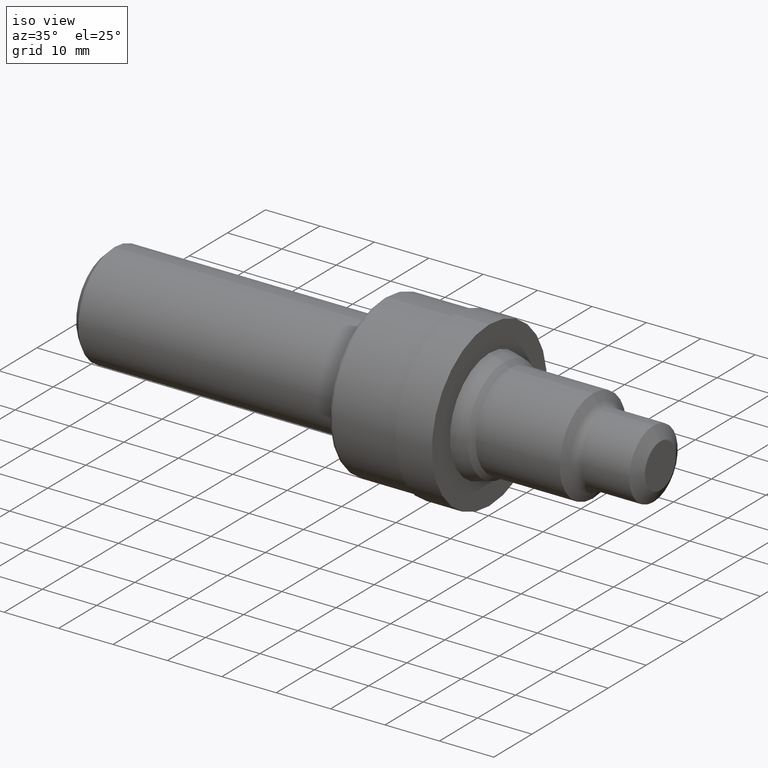
[diagram: clean part render]
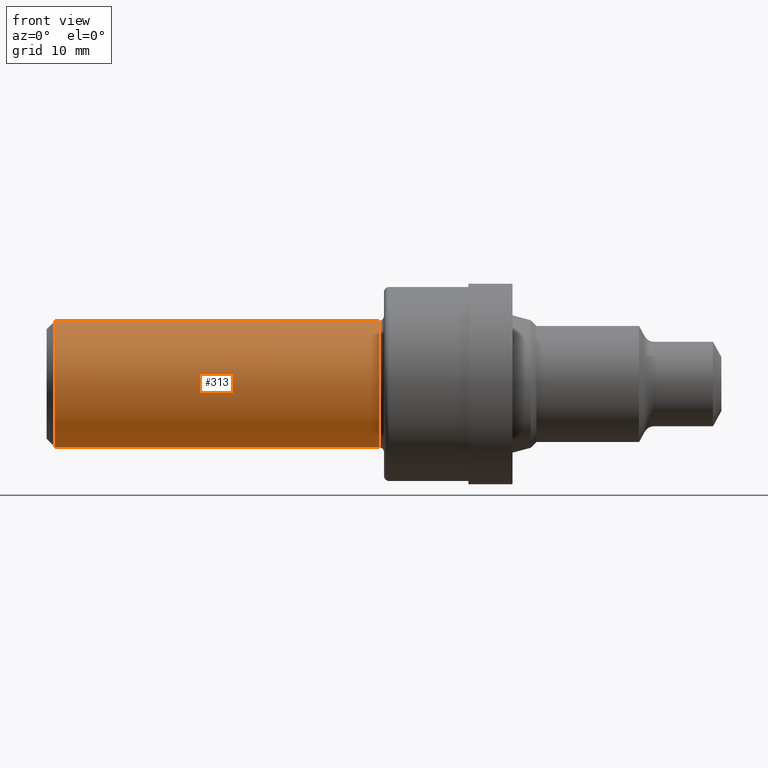
[diagram: tour spotlight — one face highlighted and labeled with its STEP entity id]
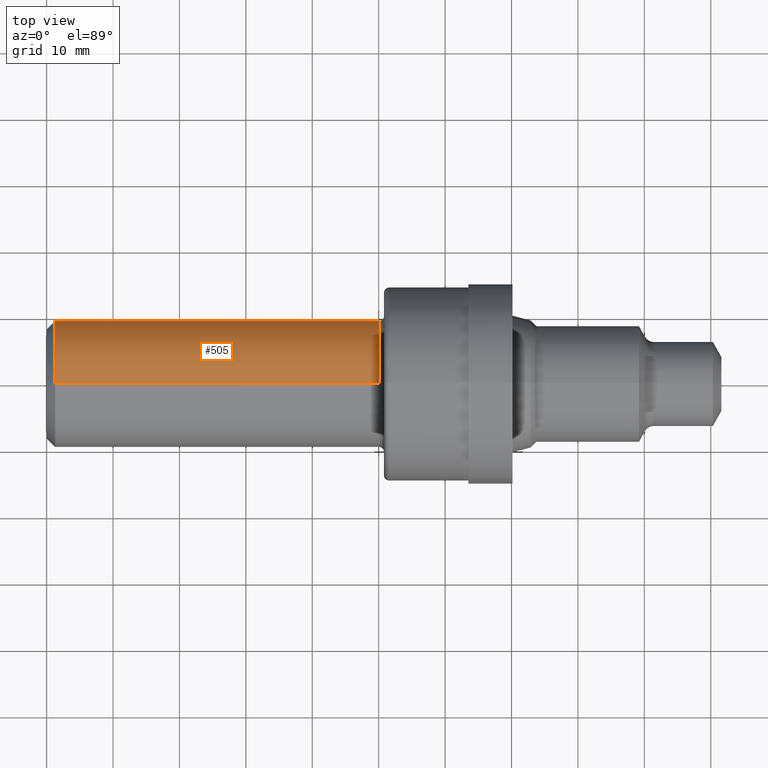
[diagram: tour spotlight — one face highlighted and labeled with its STEP entity id]
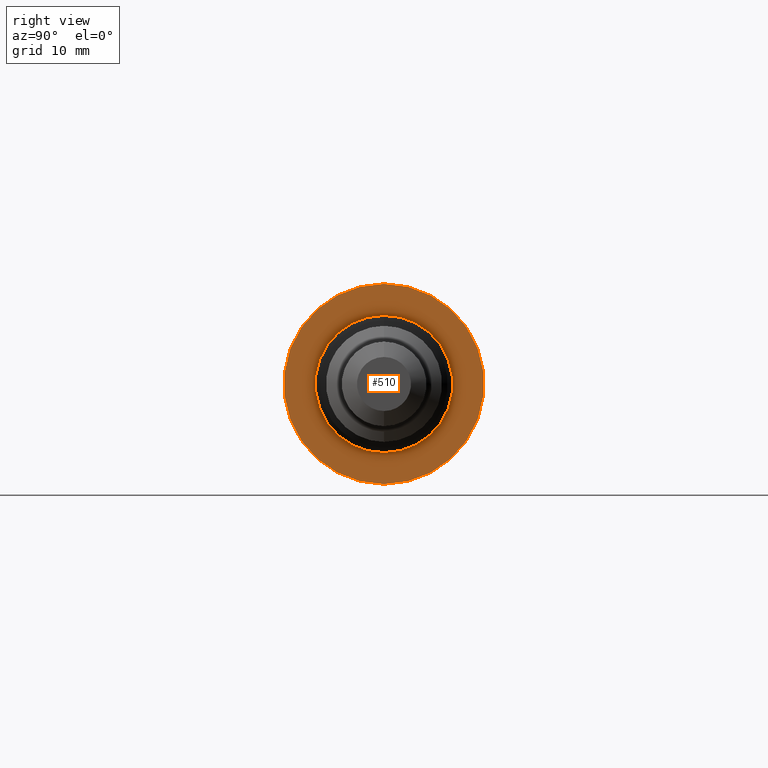
[diagram: tour spotlight — one face highlighted and labeled with its STEP entity id]
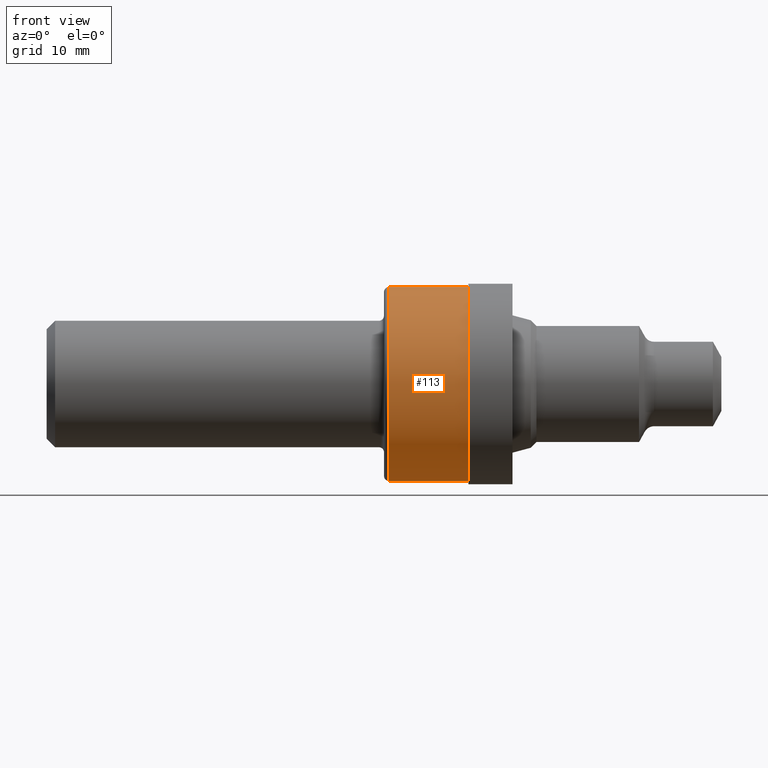
[diagram: tour spotlight — one face highlighted and labeled with its STEP entity id]
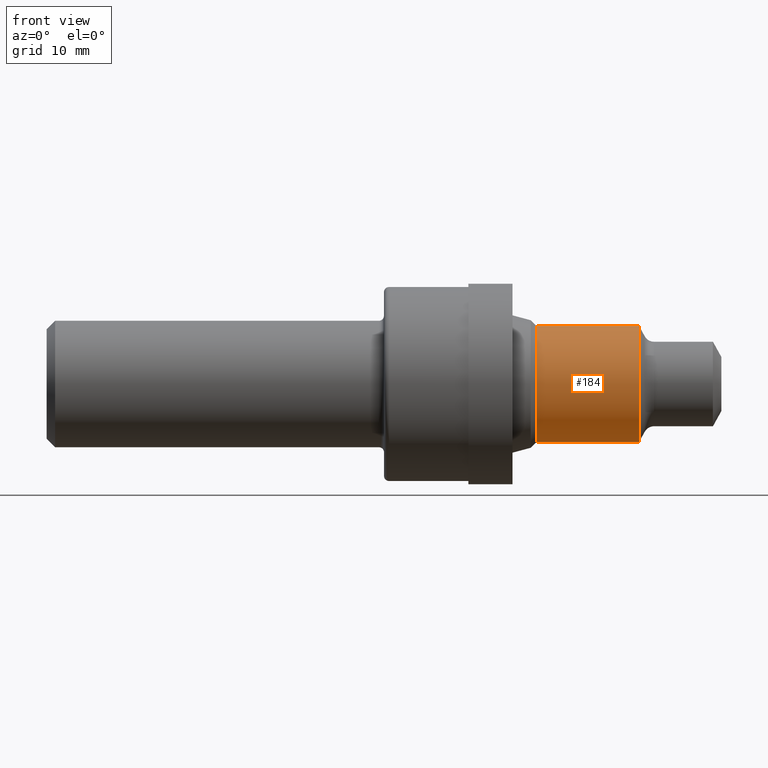
[diagram: tour spotlight — one face highlighted and labeled with its STEP entity id]
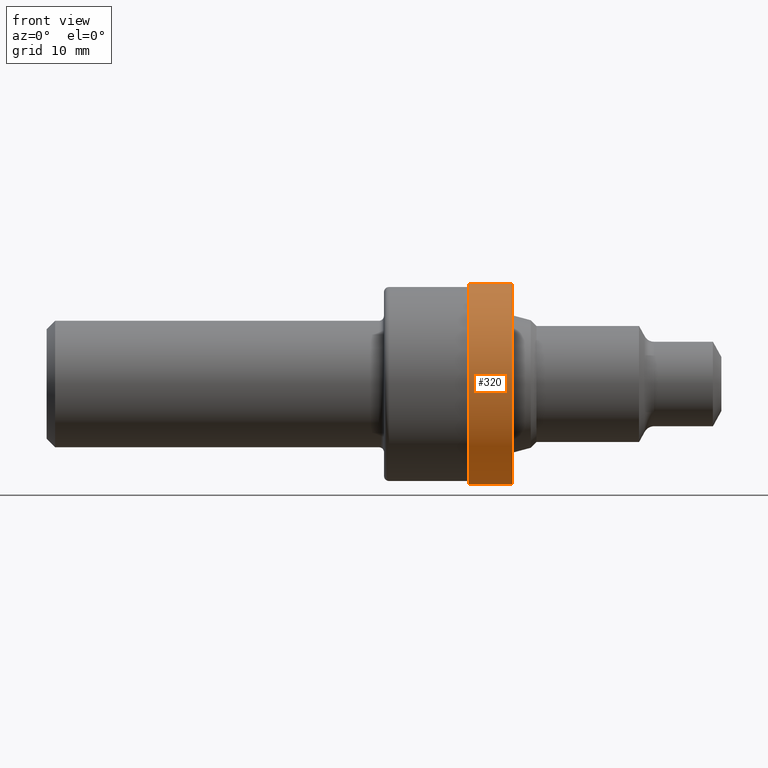
[diagram: tour spotlight — one face highlighted and labeled with its STEP entity id]
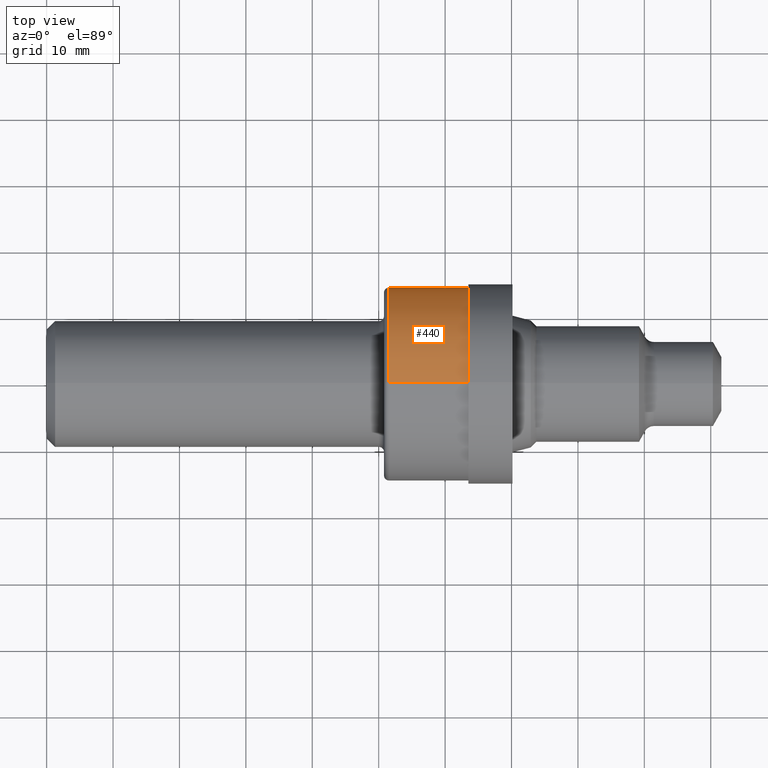
[diagram: tour spotlight — one face highlighted and labeled with its STEP entity id]
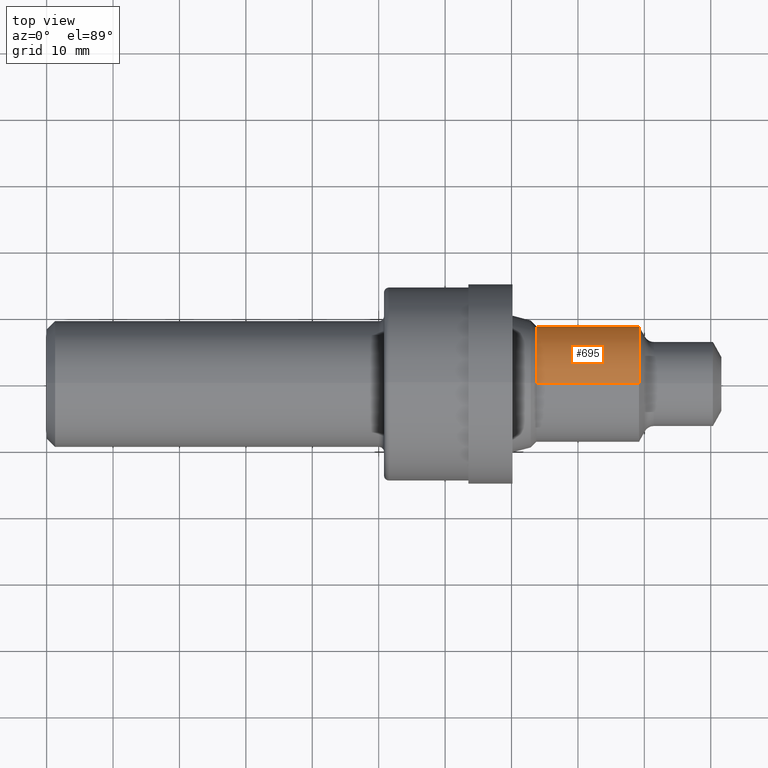
[diagram: tour spotlight — one face highlighted and labeled with its STEP entity id]
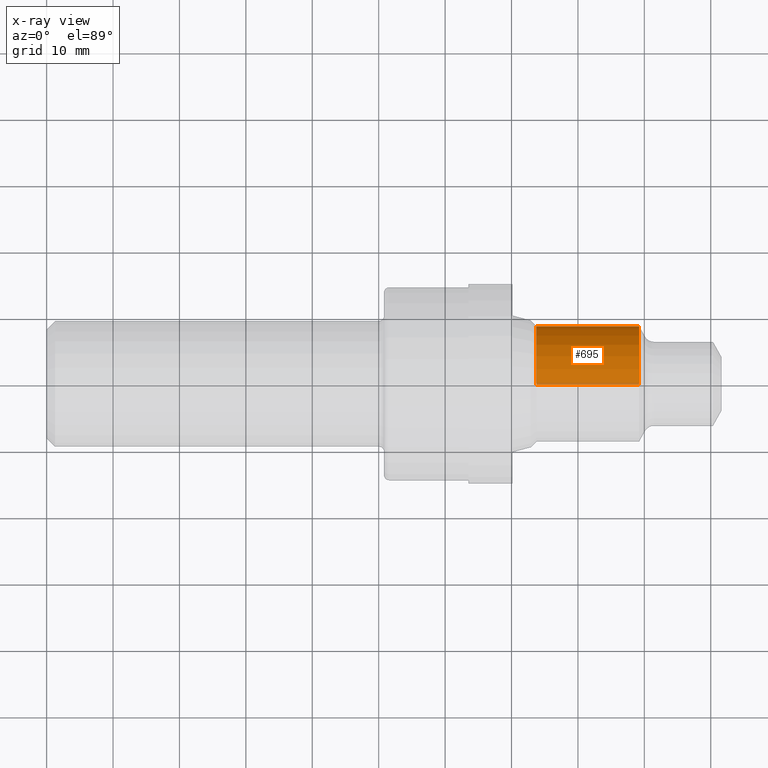
[diagram: x-ray of the same camera — body ghosted, this tour face saturated]
A machine part: a face-by-face anatomy tour. The part has 31 B-rep faces; the first image is the clean iso view, then the 8 largest visible faces are spotlighted one at a time (largest first), each with its STEP entity span.

Face 1 — front view, entity #313. In plain terms, the highlighted cylindrical surface (partial cylindrical patch) has radius 9.5212 mm, axis along (-1, -0, -0).
Definition (entity closure, byte-faithful):
#8 = DIRECTION ( 'NONE',  ( -1.000000000000000000, -0.0000000000000000000, -0.0000000000000000000 ) ) ;
#42 = VERTEX_POINT ( 'NONE', #271 ) ;
#58 = EDGE_CURVE ( 'NONE', #42, #753, #407, .T. ) ;
#80 = CARTESIAN_POINT ( 'NONE',  ( 0.05000000000000000278, 0.0000000000000000000, -0.3748500000000000165 ) ) ;
#86 = FACE_OUTER_BOUND ( 'NONE', #800, .T. ) ;
#92 = ORIENTED_EDGE ( 'NONE', *, *, #580, .T. ) ;
#114 = ORIENTED_EDGE ( 'NONE', *, *, #679, .F. ) ;
#132 = ORIENTED_EDGE ( 'NONE', *, *, #687, .T. ) ;
#139 = CIRCLE ( 'NONE', #490, 0.3748500000000000165 ) ;
#164 = LINE ( 'NONE', #498, #342 ) ;
#172 = CARTESIAN_POINT ( 'NONE',  ( 1.969999999999999973, 0.0000000000000000000, 0.3748500000000005161 ) ) ;
#186 = VECTOR ( 'NONE', #337, 39.37007874015748143 ) ;
#212 = DIRECTION ( 'NONE',  ( 0.0000000000000000000, 0.0000000000000000000, 1.000000000000000000 ) ) ;
#251 = AXIS2_PLACEMENT_3D ( 'NONE', #410, #8, #343 ) ;
#271 = CARTESIAN_POINT ( 'NONE',  ( 1.969999999999999973, 4.590588526603859294E-17, -0.3748500000000005161 ) ) ;
#273 = CARTESIAN_POINT ( 'NONE',  ( 0.0000000000000000000, 0.0000000000000000000, 0.0000000000000000000 ) ) ;
#278 = CIRCLE ( 'NONE', #251, 0.3748500000000005161 ) ;
#308 = DIRECTION ( 'NONE',  ( -1.000000000000000000, -0.0000000000000000000, -0.0000000000000000000 ) ) ;
#313 = ADVANCED_FACE ( 'NONE', ( #86 ), #548, .T. ) ;
#337 = DIRECTION ( 'NONE',  ( -1.000000000000000000, -0.0000000000000000000, -0.0000000000000000000 ) ) ;
#342 = VECTOR ( 'NONE', #308, 39.37007874015748143 ) ;
#343 = DIRECTION ( 'NONE',  ( 0.0000000000000000000, 0.0000000000000000000, 1.000000000000000000 ) ) ;
#407 = LINE ( 'NONE', #774, #186 ) ;
#410 = CARTESIAN_POINT ( 'NONE',  ( 1.969999999999999973, 0.0000000000000000000, 0.0000000000000000000 ) ) ;
#423 = CARTESIAN_POINT ( 'NONE',  ( 0.05000000000000000278, 4.590588526603853748E-17, 0.3748500000000000165 ) ) ;
#438 = DIRECTION ( 'NONE',  ( -1.000000000000000000, -0.0000000000000000000, -0.0000000000000000000 ) ) ;
#490 = AXIS2_PLACEMENT_3D ( 'NONE', #809, #438, #621 ) ;
#498 = CARTESIAN_POINT ( 'NONE',  ( 0.0000000000000000000, 0.0000000000000000000, 0.3748500000000002386 ) ) ;
#504 = VERTEX_POINT ( 'NONE', #172 ) ;
#540 = ORIENTED_EDGE ( 'NONE', *, *, #58, .F. ) ;
#548 = CYLINDRICAL_SURFACE ( 'NONE', #765, 0.3748500000000002386 ) ;
#580 = EDGE_CURVE ( 'NONE', #504, #833, #164, .T. ) ;
#621 = DIRECTION ( 'NONE',  ( 0.0000000000000000000, 0.0000000000000000000, 1.000000000000000000 ) ) ;
#679 = EDGE_CURVE ( 'NONE', #753, #833, #139, .T. ) ;
#687 = EDGE_CURVE ( 'NONE', #42, #504, #278, .T. ) ;
#723 = DIRECTION ( 'NONE',  ( -1.000000000000000000, -0.0000000000000000000, -0.0000000000000000000 ) ) ;
#753 = VERTEX_POINT ( 'NONE', #80 ) ;
#765 = AXIS2_PLACEMENT_3D ( 'NONE', #273, #723, #212 ) ;
#774 = CARTESIAN_POINT ( 'NONE',  ( 0.0000000000000000000, 4.590588526603856213E-17, -0.3748500000000002386 ) ) ;
#800 = EDGE_LOOP ( 'NONE', ( #540, #132, #92, #114 ) ) ;
#809 = CARTESIAN_POINT ( 'NONE',  ( 0.05000000000000000278, 0.0000000000000000000, 0.0000000000000000000 ) ) ;
#833 = VERTEX_POINT ( 'NONE', #423 ) ;

Face 2 — top view, entity #505. In plain terms, the highlighted cylindrical surface (partial cylindrical patch) has radius 9.5212 mm, axis along (-1, -0, -0).
Definition (entity closure, byte-faithful):
#15 = DIRECTION ( 'NONE',  ( 0.0000000000000000000, 0.0000000000000000000, 1.000000000000000000 ) ) ;
#21 = ORIENTED_EDGE ( 'NONE', *, *, #844, .T. ) ;
#42 = VERTEX_POINT ( 'NONE', #271 ) ;
#52 = CYLINDRICAL_SURFACE ( 'NONE', #81, 0.3748500000000002386 ) ;
#58 = EDGE_CURVE ( 'NONE', #42, #753, #407, .T. ) ;
#80 = CARTESIAN_POINT ( 'NONE',  ( 0.05000000000000000278, 0.0000000000000000000, -0.3748500000000000165 ) ) ;
#81 = AXIS2_PLACEMENT_3D ( 'NONE', #716, #771, #752 ) ;
#164 = LINE ( 'NONE', #498, #342 ) ;
#172 = CARTESIAN_POINT ( 'NONE',  ( 1.969999999999999973, 0.0000000000000000000, 0.3748500000000005161 ) ) ;
#177 = CIRCLE ( 'NONE', #592, 0.3748500000000000165 ) ;
#186 = VECTOR ( 'NONE', #337, 39.37007874015748143 ) ;
#205 = DIRECTION ( 'NONE',  ( 0.0000000000000000000, 0.0000000000000000000, 1.000000000000000000 ) ) ;
#207 = ORIENTED_EDGE ( 'NONE', *, *, #580, .F. ) ;
#271 = CARTESIAN_POINT ( 'NONE',  ( 1.969999999999999973, 4.590588526603859294E-17, -0.3748500000000005161 ) ) ;
#308 = DIRECTION ( 'NONE',  ( -1.000000000000000000, -0.0000000000000000000, -0.0000000000000000000 ) ) ;
#337 = DIRECTION ( 'NONE',  ( -1.000000000000000000, -0.0000000000000000000, -0.0000000000000000000 ) ) ;
#342 = VECTOR ( 'NONE', #308, 39.37007874015748143 ) ;
#360 = CARTESIAN_POINT ( 'NONE',  ( 1.969999999999999973, 0.0000000000000000000, 0.0000000000000000000 ) ) ;
#407 = LINE ( 'NONE', #774, #186 ) ;
#423 = CARTESIAN_POINT ( 'NONE',  ( 0.05000000000000000278, 4.590588526603853748E-17, 0.3748500000000000165 ) ) ;
#471 = EDGE_CURVE ( 'NONE', #833, #753, #177, .T. ) ;
#498 = CARTESIAN_POINT ( 'NONE',  ( 0.0000000000000000000, 0.0000000000000000000, 0.3748500000000002386 ) ) ;
#504 = VERTEX_POINT ( 'NONE', #172 ) ;
#505 = ADVANCED_FACE ( 'NONE', ( #578 ), #52, .T. ) ;
#547 = DIRECTION ( 'NONE',  ( -1.000000000000000000, -0.0000000000000000000, -0.0000000000000000000 ) ) ;
#571 = ORIENTED_EDGE ( 'NONE', *, *, #471, .F. ) ;
#578 = FACE_OUTER_BOUND ( 'NONE', #653, .T. ) ;
#580 = EDGE_CURVE ( 'NONE', #504, #833, #164, .T. ) ;
#592 = AXIS2_PLACEMENT_3D ( 'NONE', #595, #657, #205 ) ;
#595 = CARTESIAN_POINT ( 'NONE',  ( 0.05000000000000000278, 0.0000000000000000000, 0.0000000000000000000 ) ) ;
#598 = CIRCLE ( 'NONE', #759, 0.3748500000000005161 ) ;
#653 = EDGE_LOOP ( 'NONE', ( #21, #823, #571, #207 ) ) ;
#657 = DIRECTION ( 'NONE',  ( -1.000000000000000000, -0.0000000000000000000, -0.0000000000000000000 ) ) ;
#716 = CARTESIAN_POINT ( 'NONE',  ( 0.0000000000000000000, 0.0000000000000000000, 0.0000000000000000000 ) ) ;
#752 = DIRECTION ( 'NONE',  ( 0.0000000000000000000, 0.0000000000000000000, 1.000000000000000000 ) ) ;
#753 = VERTEX_POINT ( 'NONE', #80 ) ;
#759 = AXIS2_PLACEMENT_3D ( 'NONE', #360, #547, #15 ) ;
#771 = DIRECTION ( 'NONE',  ( -1.000000000000000000, -0.0000000000000000000, -0.0000000000000000000 ) ) ;
#774 = CARTESIAN_POINT ( 'NONE',  ( 0.0000000000000000000, 4.590588526603856213E-17, -0.3748500000000002386 ) ) ;
#823 = ORIENTED_EDGE ( 'NONE', *, *, #58, .T. ) ;
#833 = VERTEX_POINT ( 'NONE', #423 ) ;
#844 = EDGE_CURVE ( 'NONE', #504, #42, #598, .T. ) ;

Face 3 — right view, entity #510. In plain terms, the highlighted planar face has unit normal (-1, 0, -0).
Definition (entity closure, byte-faithful):
#1 = CARTESIAN_POINT ( 'NONE',  ( 2.762000000000000011, 0.5939999999999999725, 0.0000000000000000000 ) ) ;
#28 = DIRECTION ( 'NONE',  ( 0.0000000000000000000, 0.0000000000000000000, 1.000000000000000000 ) ) ;
#41 = CIRCLE ( 'NONE', #538, 0.4069999999999999729 ) ;
#56 = PLANE ( 'NONE',  #298 ) ;
#61 = CARTESIAN_POINT ( 'NONE',  ( 2.762000000000000011, 0.0000000000000000000, 0.0000000000000000000 ) ) ;
#62 = CIRCLE ( 'NONE', #408, 0.5939999999999999725 ) ;
#111 = CIRCLE ( 'NONE', #327, 0.4069999999999999729 ) ;
#137 = CARTESIAN_POINT ( 'NONE',  ( 2.762000000000000011, 0.0000000000000000000, 0.5939999999999999725 ) ) ;
#151 = DIRECTION ( 'NONE',  ( -1.000000000000000000, -0.0000000000000000000, -0.0000000000000000000 ) ) ;
#195 = CARTESIAN_POINT ( 'NONE',  ( 2.762000000000000011, 0.0000000000000000000, 0.4069999999999999729 ) ) ;
#252 = EDGE_CURVE ( 'NONE', #553, #319, #62, .T. ) ;
#270 = VERTEX_POINT ( 'NONE', #785 ) ;
#275 = CARTESIAN_POINT ( 'NONE',  ( 2.762000000000000011, 0.0000000000000000000, 0.0000000000000000000 ) ) ;
#286 = ORIENTED_EDGE ( 'NONE', *, *, #579, .F. ) ;
#298 = AXIS2_PLACEMENT_3D ( 'NONE', #1, #766, #640 ) ;
#316 = AXIS2_PLACEMENT_3D ( 'NONE', #795, #424, #28 ) ;
#319 = VERTEX_POINT ( 'NONE', #137 ) ;
#327 = AXIS2_PLACEMENT_3D ( 'NONE', #481, #151, #610 ) ;
#329 = EDGE_LOOP ( 'NONE', ( #286, #565 ) ) ;
#344 = EDGE_CURVE ( 'NONE', #482, #270, #41, .T. ) ;
#405 = FACE_OUTER_BOUND ( 'NONE', #329, .T. ) ;
#408 = AXIS2_PLACEMENT_3D ( 'NONE', #275, #607, #668 ) ;
#424 = DIRECTION ( 'NONE',  ( -1.000000000000000000, -0.0000000000000000000, -0.0000000000000000000 ) ) ;
#425 = FACE_BOUND ( 'NONE', #502, .T. ) ;
#481 = CARTESIAN_POINT ( 'NONE',  ( 2.762000000000000011, 0.0000000000000000000, 0.0000000000000000000 ) ) ;
#482 = VERTEX_POINT ( 'NONE', #195 ) ;
#496 = CIRCLE ( 'NONE', #316, 0.5939999999999999725 ) ;
#502 = EDGE_LOOP ( 'NONE', ( #514, #728 ) ) ;
#510 = ADVANCED_FACE ( 'NONE', ( #405, #425 ), #56, .F. ) ;
#514 = ORIENTED_EDGE ( 'NONE', *, *, #344, .T. ) ;
#524 = DIRECTION ( 'NONE',  ( -1.000000000000000000, -0.0000000000000000000, -0.0000000000000000000 ) ) ;
#538 = AXIS2_PLACEMENT_3D ( 'NONE', #61, #524, #567 ) ;
#553 = VERTEX_POINT ( 'NONE', #624 ) ;
#565 = ORIENTED_EDGE ( 'NONE', *, *, #252, .F. ) ;
#567 = DIRECTION ( 'NONE',  ( 0.0000000000000000000, 0.0000000000000000000, 1.000000000000000000 ) ) ;
#579 = EDGE_CURVE ( 'NONE', #319, #553, #496, .T. ) ;
#607 = DIRECTION ( 'NONE',  ( -1.000000000000000000, -0.0000000000000000000, -0.0000000000000000000 ) ) ;
#610 = DIRECTION ( 'NONE',  ( 0.0000000000000000000, 0.0000000000000000000, 1.000000000000000000 ) ) ;
#624 = CARTESIAN_POINT ( 'NONE',  ( 2.762000000000000011, 7.274401986935277967E-17, -0.5939999999999999725 ) ) ;
#640 = DIRECTION ( 'NONE',  ( -0.0000000000000000000, 0.0000000000000000000, 1.000000000000000000 ) ) ;
#668 = DIRECTION ( 'NONE',  ( 0.0000000000000000000, 0.0000000000000000000, 1.000000000000000000 ) ) ;
#728 = ORIENTED_EDGE ( 'NONE', *, *, #793, .T. ) ;
#766 = DIRECTION ( 'NONE',  ( -1.000000000000000000, 0.0000000000000000000, -0.0000000000000000000 ) ) ;
#785 = CARTESIAN_POINT ( 'NONE',  ( 2.762000000000000011, 4.984312472529727610E-17, -0.4069999999999999729 ) ) ;
#793 = EDGE_CURVE ( 'NONE', #270, #482, #111, .T. ) ;
#795 = CARTESIAN_POINT ( 'NONE',  ( 2.762000000000000011, 0.0000000000000000000, 0.0000000000000000000 ) ) ;

Face 4 — front view, entity #113. In plain terms, the highlighted cylindrical surface (partial cylindrical patch) has radius 14.605 mm, axis along (-1, -0, -0).
Definition (entity closure, byte-faithful):
#10 = ORIENTED_EDGE ( 'NONE', *, *, #431, .F. ) ;
#38 = ORIENTED_EDGE ( 'NONE', *, *, #751, .T. ) ;
#39 = DIRECTION ( 'NONE',  ( -1.000000000000000000, -0.0000000000000000000, -0.0000000000000000000 ) ) ;
#68 = CARTESIAN_POINT ( 'NONE',  ( 2.029999999999999805, 0.0000000000000000000, 0.0000000000000000000 ) ) ;
#107 = VERTEX_POINT ( 'NONE', #767 ) ;
#113 = ADVANCED_FACE ( 'NONE', ( #665 ), #192, .T. ) ;
#123 = DIRECTION ( 'NONE',  ( -1.000000000000000000, -0.0000000000000000000, -0.0000000000000000000 ) ) ;
#127 = CARTESIAN_POINT ( 'NONE',  ( 0.0000000000000000000, 0.0000000000000000000, 0.0000000000000000000 ) ) ;
#129 = VECTOR ( 'NONE', #213, 39.37007874015748143 ) ;
#130 = AXIS2_PLACEMENT_3D ( 'NONE', #68, #39, #244 ) ;
#170 = EDGE_LOOP ( 'NONE', ( #10, #466, #38, #768 ) ) ;
#192 = CYLINDRICAL_SURFACE ( 'NONE', #569, 0.5749999999999998446 ) ;
#198 = DIRECTION ( 'NONE',  ( 0.0000000000000000000, 0.0000000000000000000, 1.000000000000000000 ) ) ;
#199 = DIRECTION ( 'NONE',  ( 0.0000000000000000000, 0.0000000000000000000, 1.000000000000000000 ) ) ;
#213 = DIRECTION ( 'NONE',  ( -1.000000000000000000, -0.0000000000000000000, -0.0000000000000000000 ) ) ;
#241 = AXIS2_PLACEMENT_3D ( 'NONE', #392, #589, #198 ) ;
#244 = DIRECTION ( 'NONE',  ( 0.0000000000000000000, 0.0000000000000000000, 1.000000000000000000 ) ) ;
#290 = CARTESIAN_POINT ( 'NONE',  ( 2.500000000000000000, 0.0000000000000000000, 0.5749999999999999556 ) ) ;
#381 = EDGE_CURVE ( 'NONE', #107, #834, #527, .T. ) ;
#392 = CARTESIAN_POINT ( 'NONE',  ( 2.500000000000000000, 0.0000000000000000000, 0.0000000000000000000 ) ) ;
#419 = EDGE_CURVE ( 'NONE', #549, #475, #528, .T. ) ;
#431 = EDGE_CURVE ( 'NONE', #107, #549, #675, .T. ) ;
#466 = ORIENTED_EDGE ( 'NONE', *, *, #381, .T. ) ;
#475 = VERTEX_POINT ( 'NONE', #532 ) ;
#507 = VECTOR ( 'NONE', #700, 39.37007874015748143 ) ;
#527 = CIRCLE ( 'NONE', #241, 0.5749999999999999556 ) ;
#528 = CIRCLE ( 'NONE', #130, 0.5749999999999998446 ) ;
#532 = CARTESIAN_POINT ( 'NONE',  ( 2.029999999999999805, 0.0000000000000000000, 0.5749999999999998446 ) ) ;
#549 = VERTEX_POINT ( 'NONE', #688 ) ;
#569 = AXIS2_PLACEMENT_3D ( 'NONE', #127, #123, #199 ) ;
#589 = DIRECTION ( 'NONE',  ( -1.000000000000000000, -0.0000000000000000000, -0.0000000000000000000 ) ) ;
#601 = CARTESIAN_POINT ( 'NONE',  ( 0.0000000000000000000, 0.0000000000000000000, 0.5749999999999998446 ) ) ;
#665 = FACE_OUTER_BOUND ( 'NONE', #170, .T. ) ;
#675 = LINE ( 'NONE', #808, #507 ) ;
#688 = CARTESIAN_POINT ( 'NONE',  ( 2.029999999999999805, 7.041719095097280140E-17, -0.5749999999999998446 ) ) ;
#700 = DIRECTION ( 'NONE',  ( -1.000000000000000000, -0.0000000000000000000, -0.0000000000000000000 ) ) ;
#751 = EDGE_CURVE ( 'NONE', #834, #475, #817, .T. ) ;
#767 = CARTESIAN_POINT ( 'NONE',  ( 2.500000000000000000, 7.041719095097281373E-17, -0.5750000000000000666 ) ) ;
#768 = ORIENTED_EDGE ( 'NONE', *, *, #419, .F. ) ;
#808 = CARTESIAN_POINT ( 'NONE',  ( 0.0000000000000000000, 7.041719095097280140E-17, -0.5749999999999998446 ) ) ;
#817 = LINE ( 'NONE', #601, #129 ) ;
#834 = VERTEX_POINT ( 'NONE', #290 ) ;

Face 5 — front view, entity #184. In plain terms, the highlighted cylindrical surface (partial cylindrical patch) has radius 8.7376 mm, axis along (-1, -0, -0).
Definition (entity closure, byte-faithful):
#20 = CIRCLE ( 'NONE', #136, 0.3440000000000000280 ) ;
#57 = CARTESIAN_POINT ( 'NONE',  ( 0.0000000000000000000, 0.0000000000000000000, 0.0000000000000000000 ) ) ;
#69 = ORIENTED_EDGE ( 'NONE', *, *, #459, .T. ) ;
#105 = DIRECTION ( 'NONE',  ( -1.000000000000000000, -0.0000000000000000000, -0.0000000000000000000 ) ) ;
#119 = DIRECTION ( 'NONE',  ( -1.000000000000000000, -0.0000000000000000000, -0.0000000000000000000 ) ) ;
#136 = AXIS2_PLACEMENT_3D ( 'NONE', #437, #703, #519 ) ;
#138 = ORIENTED_EDGE ( 'NONE', *, *, #403, .F. ) ;
#148 = DIRECTION ( 'NONE',  ( -1.000000000000000000, -0.0000000000000000000, -0.0000000000000000000 ) ) ;
#184 = ADVANCED_FACE ( 'NONE', ( #807 ), #804, .T. ) ;
#239 = CARTESIAN_POINT ( 'NONE',  ( 3.512000000000000011, 0.0000000000000000000, 0.0000000000000000000 ) ) ;
#255 = AXIS2_PLACEMENT_3D ( 'NONE', #57, #119, #829 ) ;
#258 = LINE ( 'NONE', #727, #746 ) ;
#263 = CARTESIAN_POINT ( 'NONE',  ( 3.512000000000000011, 0.0000000000000000000, 0.3440000000000000280 ) ) ;
#269 = EDGE_CURVE ( 'NONE', #422, #770, #258, .T. ) ;
#272 = AXIS2_PLACEMENT_3D ( 'NONE', #239, #105, #501 ) ;
#287 = EDGE_LOOP ( 'NONE', ( #347, #69, #398, #138 ) ) ;
#299 = EDGE_CURVE ( 'NONE', #707, #330, #416, .T. ) ;
#307 = CARTESIAN_POINT ( 'NONE',  ( 2.904061487217438398, 4.421351445542069330E-17, -0.3440000000000000280 ) ) ;
#330 = VERTEX_POINT ( 'NONE', #307 ) ;
#345 = DIRECTION ( 'NONE',  ( -1.000000000000000000, -0.0000000000000000000, -0.0000000000000000000 ) ) ;
#347 = ORIENTED_EDGE ( 'NONE', *, *, #299, .F. ) ;
#348 = CARTESIAN_POINT ( 'NONE',  ( 0.0000000000000000000, 4.212784989066894949E-17, -0.3440000000000000280 ) ) ;
#349 = CARTESIAN_POINT ( 'NONE',  ( 2.904061487217438398, 0.0000000000000000000, 0.3440000000000000280 ) ) ;
#397 = VECTOR ( 'NONE', #148, 39.37007874015748143 ) ;
#398 = ORIENTED_EDGE ( 'NONE', *, *, #269, .T. ) ;
#403 = EDGE_CURVE ( 'NONE', #330, #770, #20, .T. ) ;
#416 = LINE ( 'NONE', #348, #397 ) ;
#422 = VERTEX_POINT ( 'NONE', #263 ) ;
#437 = CARTESIAN_POINT ( 'NONE',  ( 2.904061487217438398, 0.0000000000000000000, 0.0000000000000000000 ) ) ;
#459 = EDGE_CURVE ( 'NONE', #707, #422, #597, .T. ) ;
#501 = DIRECTION ( 'NONE',  ( 0.0000000000000000000, 0.0000000000000000000, 1.000000000000000000 ) ) ;
#519 = DIRECTION ( 'NONE',  ( 0.0000000000000000000, 0.0000000000000000000, 1.000000000000000000 ) ) ;
#597 = CIRCLE ( 'NONE', #272, 0.3440000000000000280 ) ;
#703 = DIRECTION ( 'NONE',  ( -1.000000000000000000, -0.0000000000000000000, -0.0000000000000000000 ) ) ;
#707 = VERTEX_POINT ( 'NONE', #731 ) ;
#727 = CARTESIAN_POINT ( 'NONE',  ( 0.0000000000000000000, 0.0000000000000000000, 0.3440000000000000280 ) ) ;
#731 = CARTESIAN_POINT ( 'NONE',  ( 3.512000000000000011, 4.212784989066894949E-17, -0.3440000000000000280 ) ) ;
#746 = VECTOR ( 'NONE', #345, 39.37007874015748143 ) ;
#770 = VERTEX_POINT ( 'NONE', #349 ) ;
#804 = CYLINDRICAL_SURFACE ( 'NONE', #255, 0.3440000000000000280 ) ;
#807 = FACE_OUTER_BOUND ( 'NONE', #287, .T. ) ;
#829 = DIRECTION ( 'NONE',  ( 0.0000000000000000000, 0.0000000000000000000, 1.000000000000000000 ) ) ;

Face 6 — front view, entity #320. In plain terms, the highlighted cylindrical surface (partial cylindrical patch) has radius 15.0876 mm, axis along (-1, -0, -0).
Definition (entity closure, byte-faithful):
#19 = CYLINDRICAL_SURFACE ( 'NONE', #99, 0.5939999999999999725 ) ;
#48 = EDGE_CURVE ( 'NONE', #310, #65, #515, .T. ) ;
#62 = CIRCLE ( 'NONE', #408, 0.5939999999999999725 ) ;
#65 = VERTEX_POINT ( 'NONE', #70 ) ;
#70 = CARTESIAN_POINT ( 'NONE',  ( 2.500000000000000000, 0.0000000000000000000, 0.5939999999999999725 ) ) ;
#95 = CARTESIAN_POINT ( 'NONE',  ( 0.0000000000000000000, 7.274401986935277967E-17, -0.5939999999999999725 ) ) ;
#96 = ORIENTED_EDGE ( 'NONE', *, *, #48, .F. ) ;
#99 = AXIS2_PLACEMENT_3D ( 'NONE', #144, #603, #401 ) ;
#131 = DIRECTION ( 'NONE',  ( -1.000000000000000000, -0.0000000000000000000, -0.0000000000000000000 ) ) ;
#137 = CARTESIAN_POINT ( 'NONE',  ( 2.762000000000000011, 0.0000000000000000000, 0.5939999999999999725 ) ) ;
#142 = LINE ( 'NONE', #705, #645 ) ;
#143 = ORIENTED_EDGE ( 'NONE', *, *, #194, .T. ) ;
#144 = CARTESIAN_POINT ( 'NONE',  ( 0.0000000000000000000, 0.0000000000000000000, 0.0000000000000000000 ) ) ;
#194 = EDGE_CURVE ( 'NONE', #319, #65, #142, .T. ) ;
#252 = EDGE_CURVE ( 'NONE', #553, #319, #62, .T. ) ;
#275 = CARTESIAN_POINT ( 'NONE',  ( 2.762000000000000011, 0.0000000000000000000, 0.0000000000000000000 ) ) ;
#310 = VERTEX_POINT ( 'NONE', #666 ) ;
#319 = VERTEX_POINT ( 'NONE', #137 ) ;
#320 = ADVANCED_FACE ( 'NONE', ( #378 ), #19, .T. ) ;
#378 = FACE_OUTER_BOUND ( 'NONE', #492, .T. ) ;
#401 = DIRECTION ( 'NONE',  ( 0.0000000000000000000, 0.0000000000000000000, 1.000000000000000000 ) ) ;
#408 = AXIS2_PLACEMENT_3D ( 'NONE', #275, #607, #668 ) ;
#472 = VECTOR ( 'NONE', #732, 39.37007874015748143 ) ;
#492 = EDGE_LOOP ( 'NONE', ( #531, #562, #143, #96 ) ) ;
#506 = AXIS2_PLACEMENT_3D ( 'NONE', #596, #131, #533 ) ;
#515 = CIRCLE ( 'NONE', #506, 0.5939999999999999725 ) ;
#518 = DIRECTION ( 'NONE',  ( -1.000000000000000000, -0.0000000000000000000, -0.0000000000000000000 ) ) ;
#531 = ORIENTED_EDGE ( 'NONE', *, *, #619, .F. ) ;
#533 = DIRECTION ( 'NONE',  ( 0.0000000000000000000, 0.0000000000000000000, 1.000000000000000000 ) ) ;
#553 = VERTEX_POINT ( 'NONE', #624 ) ;
#562 = ORIENTED_EDGE ( 'NONE', *, *, #252, .T. ) ;
#596 = CARTESIAN_POINT ( 'NONE',  ( 2.500000000000000000, 0.0000000000000000000, 0.0000000000000000000 ) ) ;
#603 = DIRECTION ( 'NONE',  ( -1.000000000000000000, -0.0000000000000000000, -0.0000000000000000000 ) ) ;
#607 = DIRECTION ( 'NONE',  ( -1.000000000000000000, -0.0000000000000000000, -0.0000000000000000000 ) ) ;
#619 = EDGE_CURVE ( 'NONE', #553, #310, #826, .T. ) ;
#624 = CARTESIAN_POINT ( 'NONE',  ( 2.762000000000000011, 7.274401986935277967E-17, -0.5939999999999999725 ) ) ;
#645 = VECTOR ( 'NONE', #518, 39.37007874015748143 ) ;
#666 = CARTESIAN_POINT ( 'NONE',  ( 2.500000000000000000, 7.274401986935277967E-17, -0.5939999999999999725 ) ) ;
#668 = DIRECTION ( 'NONE',  ( 0.0000000000000000000, 0.0000000000000000000, 1.000000000000000000 ) ) ;
#705 = CARTESIAN_POINT ( 'NONE',  ( 0.0000000000000000000, 0.0000000000000000000, 0.5939999999999999725 ) ) ;
#732 = DIRECTION ( 'NONE',  ( -1.000000000000000000, -0.0000000000000000000, -0.0000000000000000000 ) ) ;
#826 = LINE ( 'NONE', #95, #472 ) ;

Face 7 — top view, entity #440. In plain terms, the highlighted cylindrical surface (partial cylindrical patch) has radius 14.605 mm, axis along (-1, -0, -0).
Definition (entity closure, byte-faithful):
#26 = DIRECTION ( 'NONE',  ( 0.0000000000000000000, 0.0000000000000000000, 1.000000000000000000 ) ) ;
#98 = CARTESIAN_POINT ( 'NONE',  ( 2.500000000000000000, 0.0000000000000000000, 0.0000000000000000000 ) ) ;
#107 = VERTEX_POINT ( 'NONE', #767 ) ;
#115 = AXIS2_PLACEMENT_3D ( 'NONE', #98, #563, #26 ) ;
#117 = CIRCLE ( 'NONE', #115, 0.5749999999999999556 ) ;
#129 = VECTOR ( 'NONE', #213, 39.37007874015748143 ) ;
#147 = ORIENTED_EDGE ( 'NONE', *, *, #751, .F. ) ;
#154 = CYLINDRICAL_SURFACE ( 'NONE', #842, 0.5749999999999998446 ) ;
#213 = DIRECTION ( 'NONE',  ( -1.000000000000000000, -0.0000000000000000000, -0.0000000000000000000 ) ) ;
#290 = CARTESIAN_POINT ( 'NONE',  ( 2.500000000000000000, 0.0000000000000000000, 0.5749999999999999556 ) ) ;
#331 = DIRECTION ( 'NONE',  ( 0.0000000000000000000, 0.0000000000000000000, 1.000000000000000000 ) ) ;
#335 = FACE_OUTER_BOUND ( 'NONE', #594, .T. ) ;
#367 = CARTESIAN_POINT ( 'NONE',  ( 2.029999999999999805, 0.0000000000000000000, 0.0000000000000000000 ) ) ;
#429 = DIRECTION ( 'NONE',  ( 0.0000000000000000000, 0.0000000000000000000, 1.000000000000000000 ) ) ;
#431 = EDGE_CURVE ( 'NONE', #107, #549, #675, .T. ) ;
#440 = ADVANCED_FACE ( 'NONE', ( #335 ), #154, .T. ) ;
#452 = CIRCLE ( 'NONE', #737, 0.5749999999999998446 ) ;
#461 = DIRECTION ( 'NONE',  ( -1.000000000000000000, -0.0000000000000000000, -0.0000000000000000000 ) ) ;
#475 = VERTEX_POINT ( 'NONE', #532 ) ;
#507 = VECTOR ( 'NONE', #700, 39.37007874015748143 ) ;
#532 = CARTESIAN_POINT ( 'NONE',  ( 2.029999999999999805, 0.0000000000000000000, 0.5749999999999998446 ) ) ;
#549 = VERTEX_POINT ( 'NONE', #688 ) ;
#559 = ORIENTED_EDGE ( 'NONE', *, *, #643, .F. ) ;
#563 = DIRECTION ( 'NONE',  ( -1.000000000000000000, -0.0000000000000000000, -0.0000000000000000000 ) ) ;
#594 = EDGE_LOOP ( 'NONE', ( #778, #658, #559, #147 ) ) ;
#601 = CARTESIAN_POINT ( 'NONE',  ( 0.0000000000000000000, 0.0000000000000000000, 0.5749999999999998446 ) ) ;
#643 = EDGE_CURVE ( 'NONE', #475, #549, #452, .T. ) ;
#658 = ORIENTED_EDGE ( 'NONE', *, *, #431, .T. ) ;
#661 = EDGE_CURVE ( 'NONE', #834, #107, #117, .T. ) ;
#675 = LINE ( 'NONE', #808, #507 ) ;
#688 = CARTESIAN_POINT ( 'NONE',  ( 2.029999999999999805, 7.041719095097280140E-17, -0.5749999999999998446 ) ) ;
#700 = DIRECTION ( 'NONE',  ( -1.000000000000000000, -0.0000000000000000000, -0.0000000000000000000 ) ) ;
#737 = AXIS2_PLACEMENT_3D ( 'NONE', #367, #798, #429 ) ;
#751 = EDGE_CURVE ( 'NONE', #834, #475, #817, .T. ) ;
#767 = CARTESIAN_POINT ( 'NONE',  ( 2.500000000000000000, 7.041719095097281373E-17, -0.5750000000000000666 ) ) ;
#775 = CARTESIAN_POINT ( 'NONE',  ( 0.0000000000000000000, 0.0000000000000000000, 0.0000000000000000000 ) ) ;
#778 = ORIENTED_EDGE ( 'NONE', *, *, #661, .T. ) ;
#798 = DIRECTION ( 'NONE',  ( -1.000000000000000000, -0.0000000000000000000, -0.0000000000000000000 ) ) ;
#808 = CARTESIAN_POINT ( 'NONE',  ( 0.0000000000000000000, 7.041719095097280140E-17, -0.5749999999999998446 ) ) ;
#817 = LINE ( 'NONE', #601, #129 ) ;
#834 = VERTEX_POINT ( 'NONE', #290 ) ;
#842 = AXIS2_PLACEMENT_3D ( 'NONE', #775, #461, #331 ) ;

Face 8 — top view, entity #695. An x-ray twin of the same camera follows (body ghosted, this face saturated) — the face is partly hidden behind the body. In plain terms, the highlighted cylindrical surface (partial cylindrical patch) has radius 8.7376 mm, axis along (-1, -0, -0).
Definition (entity closure, byte-faithful):
#45 = DIRECTION ( 'NONE',  ( -1.000000000000000000, -0.0000000000000000000, -0.0000000000000000000 ) ) ;
#73 = CIRCLE ( 'NONE', #677, 0.3440000000000000280 ) ;
#140 = AXIS2_PLACEMENT_3D ( 'NONE', #376, #171, #226 ) ;
#148 = DIRECTION ( 'NONE',  ( -1.000000000000000000, -0.0000000000000000000, -0.0000000000000000000 ) ) ;
#171 = DIRECTION ( 'NONE',  ( -1.000000000000000000, -0.0000000000000000000, -0.0000000000000000000 ) ) ;
#226 = DIRECTION ( 'NONE',  ( 0.0000000000000000000, 0.0000000000000000000, 1.000000000000000000 ) ) ;
#258 = LINE ( 'NONE', #727, #746 ) ;
#263 = CARTESIAN_POINT ( 'NONE',  ( 3.512000000000000011, 0.0000000000000000000, 0.3440000000000000280 ) ) ;
#269 = EDGE_CURVE ( 'NONE', #422, #770, #258, .T. ) ;
#291 = DIRECTION ( 'NONE',  ( 0.0000000000000000000, 0.0000000000000000000, 1.000000000000000000 ) ) ;
#299 = EDGE_CURVE ( 'NONE', #707, #330, #416, .T. ) ;
#307 = CARTESIAN_POINT ( 'NONE',  ( 2.904061487217438398, 4.421351445542069330E-17, -0.3440000000000000280 ) ) ;
#330 = VERTEX_POINT ( 'NONE', #307 ) ;
#345 = DIRECTION ( 'NONE',  ( -1.000000000000000000, -0.0000000000000000000, -0.0000000000000000000 ) ) ;
#348 = CARTESIAN_POINT ( 'NONE',  ( 0.0000000000000000000, 4.212784989066894949E-17, -0.3440000000000000280 ) ) ;
#349 = CARTESIAN_POINT ( 'NONE',  ( 2.904061487217438398, 0.0000000000000000000, 0.3440000000000000280 ) ) ;
#361 = ORIENTED_EDGE ( 'NONE', *, *, #633, .T. ) ;
#376 = CARTESIAN_POINT ( 'NONE',  ( 0.0000000000000000000, 0.0000000000000000000, 0.0000000000000000000 ) ) ;
#379 = ORIENTED_EDGE ( 'NONE', *, *, #447, .F. ) ;
#397 = VECTOR ( 'NONE', #148, 39.37007874015748143 ) ;
#416 = LINE ( 'NONE', #348, #397 ) ;
#422 = VERTEX_POINT ( 'NONE', #263 ) ;
#430 = DIRECTION ( 'NONE',  ( -1.000000000000000000, -0.0000000000000000000, -0.0000000000000000000 ) ) ;
#434 = FACE_OUTER_BOUND ( 'NONE', #711, .T. ) ;
#439 = CARTESIAN_POINT ( 'NONE',  ( 2.904061487217438398, 0.0000000000000000000, 0.0000000000000000000 ) ) ;
#447 = EDGE_CURVE ( 'NONE', #770, #330, #73, .T. ) ;
#575 = DIRECTION ( 'NONE',  ( 0.0000000000000000000, 0.0000000000000000000, 1.000000000000000000 ) ) ;
#618 = AXIS2_PLACEMENT_3D ( 'NONE', #799, #430, #291 ) ;
#633 = EDGE_CURVE ( 'NONE', #422, #707, #781, .T. ) ;
#641 = ORIENTED_EDGE ( 'NONE', *, *, #269, .F. ) ;
#677 = AXIS2_PLACEMENT_3D ( 'NONE', #439, #45, #575 ) ;
#695 = ADVANCED_FACE ( 'NONE', ( #434 ), #745, .T. ) ;
#707 = VERTEX_POINT ( 'NONE', #731 ) ;
#711 = EDGE_LOOP ( 'NONE', ( #361, #717, #379, #641 ) ) ;
#717 = ORIENTED_EDGE ( 'NONE', *, *, #299, .T. ) ;
#727 = CARTESIAN_POINT ( 'NONE',  ( 0.0000000000000000000, 0.0000000000000000000, 0.3440000000000000280 ) ) ;
#731 = CARTESIAN_POINT ( 'NONE',  ( 3.512000000000000011, 4.212784989066894949E-17, -0.3440000000000000280 ) ) ;
#745 = CYLINDRICAL_SURFACE ( 'NONE', #140, 0.3440000000000000280 ) ;
#746 = VECTOR ( 'NONE', #345, 39.37007874015748143 ) ;
#770 = VERTEX_POINT ( 'NONE', #349 ) ;
#781 = CIRCLE ( 'NONE', #618, 0.3440000000000000280 ) ;
#799 = CARTESIAN_POINT ( 'NONE',  ( 3.512000000000000011, 0.0000000000000000000, 0.0000000000000000000 ) ) ;